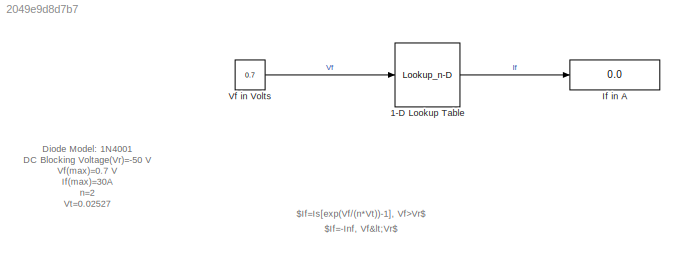
MODEL slx_2049e9d8d7b7
KIND model
CONFIG AbsTol = auto
CONFIG EnableMultiTasking = off
CONFIG FixedStep = auto
CONFIG MaxStep = auto
CONFIG MinStep = auto
CONFIG RelTol = 1e-3
CONFIG SampleTimeConstraint = Unconstrained
CONFIG SolverName = VariableStepAuto
CONFIG StartTime = 0.0
CONFIG StopTime = 120
WORKSPACE source: mxarray member
WORKSPACE I = [-4.99999517151e-06 -4.99996507637e-06 -4.9997474032e-06 -4.99817300957e-06 -4.98678568345e-06 -4.90442305629e-06 -4.30870793541e-06 0 3.11641645847e-05 0.000256569360022 0.00188688747723 0.0136787060204 ... (15 elements, 15x1)]
WORKSPACE Is = 5e-06
WORKSPACE V = [-0.7 -0.6 -0.5 -0.4 -0.3 -0.2 -0.1 0 0.1 0.2 0.3 0.4 ... (15 elements, 15x1)]
WORKSPACE Vz = -50
WORKSPACE i = 15
WORKSPACE l = 15
WORKSPACE out = 0
BLOCK [Lookup_n-D] 1-D Lookup Table
  BreakpointsForDimension1 = V
  InputPortMap = u0
  InternalRulePriority = Speed
  NumberOfTableDimensions = 1
  Ports = [1, 1]
  RndMeth = Simplest
  Table = I
BLOCK [Display] If in A
  Decimation = 1
  Ports = [1]
BLOCK [Constant] Vf in Volts
  Value = 0.7
ANNOTATION (root): Diode Model: 1N4001 DC Blocking Voltage(Vr)=-50 V Vf(max)=0.7 V If(max)=30A n=2 Vt=0.02527 Is=5uA
ANNOTATION (root): $If=-Inf, Vf<Vr$
ANNOTATION (root): $If=Is[exp(Vf/(n*Vt))-1], Vf>Vr$
LINE 1-D Lookup Table:1 -> If in A:1
LINE Vf in Volts:1 -> 1-D Lookup Table:1
